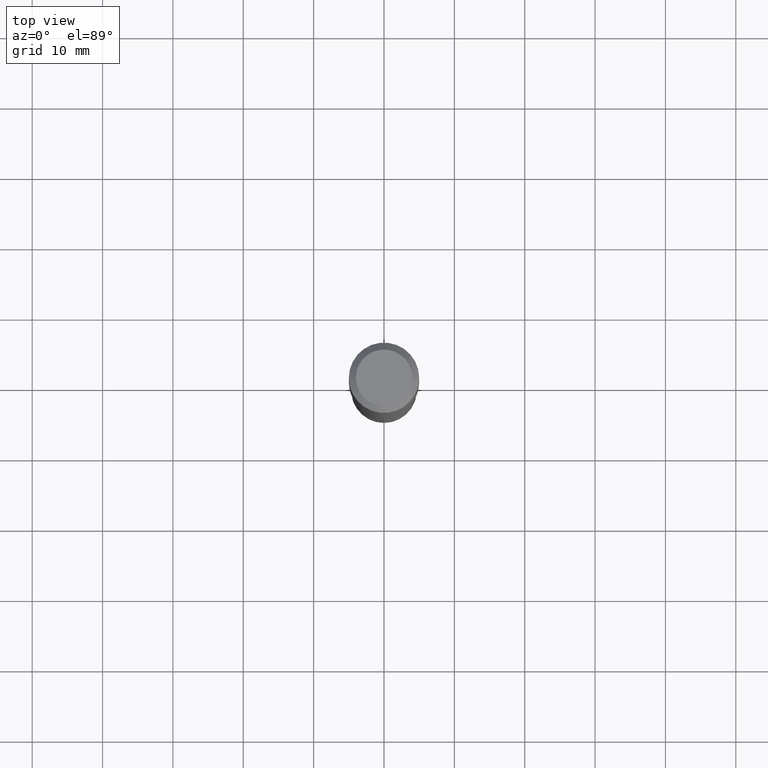
[diagram: clean part render]
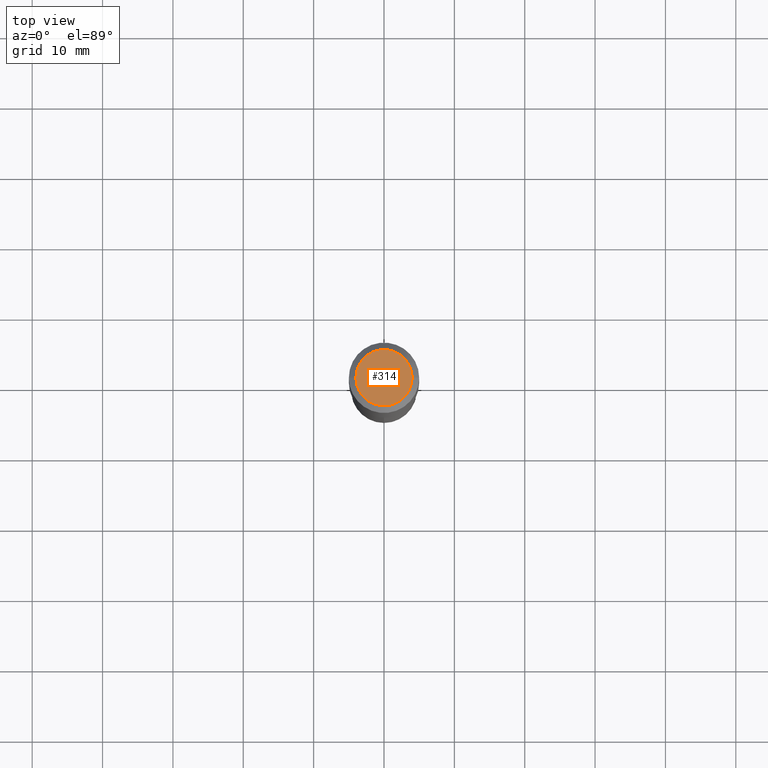
[diagram: same view with one face highlighted and labeled with its STEP entity id]
A machine part, top view. The second image highlights one B-rep face of the part: STEP entity #314.
In plain terms, the highlighted planar face has unit normal (0, -0, -1).
Its self-contained STEP definition (entity closure, byte-faithful):
#28 = CARTESIAN_POINT ( 'NONE',  ( 0.1574800000000000089, -1.284169937930321189E-15, 3.855188123724205385E-18 ) ) ;
#62 = ORIENTED_EDGE ( 'NONE', *, *, #137, .T. ) ;
#66 = CIRCLE ( 'NONE', #342, 0.1574800000000000089 ) ;
#108 = DIRECTION ( 'NONE',  ( 1.000000000000000000, -6.982962677686265922E-15, 4.876223630392693006E-29 ) ) ;
#109 = CARTESIAN_POINT ( 'NONE',  ( -9.427742298522567634E-47, 1.346031739168368355E-32, 3.855188123715870730E-18 ) ) ;
#119 = DIRECTION ( 'NONE',  ( -2.445468806185136597E-29, 3.491481338843145583E-15, 1.000000000000000000 ) ) ;
#137 = EDGE_CURVE ( 'NONE', #359, #419, #66, .T. ) ;
#174 = DIRECTION ( 'NONE',  ( 2.438088387897960049E-29, -3.491481338843145188E-15, -1.000000000000000000 ) ) ;
#188 = CIRCLE ( 'NONE', #425, 0.1574800000000000089 ) ;
#211 = CARTESIAN_POINT ( 'NONE',  ( -4.713871149261283817E-47, 6.730158695841841775E-33, 1.927594061857935365E-18 ) ) ;
#241 = CARTESIAN_POINT ( 'NONE',  ( -0.1574800000000000089, 1.168406772637159618E-15, 3.855188123707939751E-18 ) ) ;
#252 = EDGE_CURVE ( 'NONE', #419, #359, #188, .T. ) ;
#262 = DIRECTION ( 'NONE',  ( -2.445468806185136597E-29, 3.491481338843145583E-15, 1.000000000000000000 ) ) ;
#272 = DIRECTION ( 'NONE',  ( 1.000000000000000000, -6.982962677686265922E-15, 4.876223630392693006E-29 ) ) ;
#278 = ORIENTED_EDGE ( 'NONE', *, *, #252, .T. ) ;
#291 = AXIS2_PLACEMENT_3D ( 'NONE', #211, #174, #363 ) ;
#311 = PLANE ( 'NONE',  #291 ) ;
#314 = ADVANCED_FACE ( 'NONE', ( #433 ), #311, .F. ) ;
#342 = AXIS2_PLACEMENT_3D ( 'NONE', #109, #262, #108 ) ;
#359 = VERTEX_POINT ( 'NONE', #241 ) ;
#363 = DIRECTION ( 'NONE',  ( -1.000000000000000000, 6.982962677686265922E-15, -4.876176775795935793E-29 ) ) ;
#419 = VERTEX_POINT ( 'NONE', #28 ) ;
#425 = AXIS2_PLACEMENT_3D ( 'NONE', #426, #119, #272 ) ;
#426 = CARTESIAN_POINT ( 'NONE',  ( -9.427742298522567634E-47, 1.346031739168368355E-32, 3.855188123715870730E-18 ) ) ;
#433 = FACE_OUTER_BOUND ( 'NONE', #485, .T. ) ;
#485 = EDGE_LOOP ( 'NONE', ( #62, #278 ) ) ;